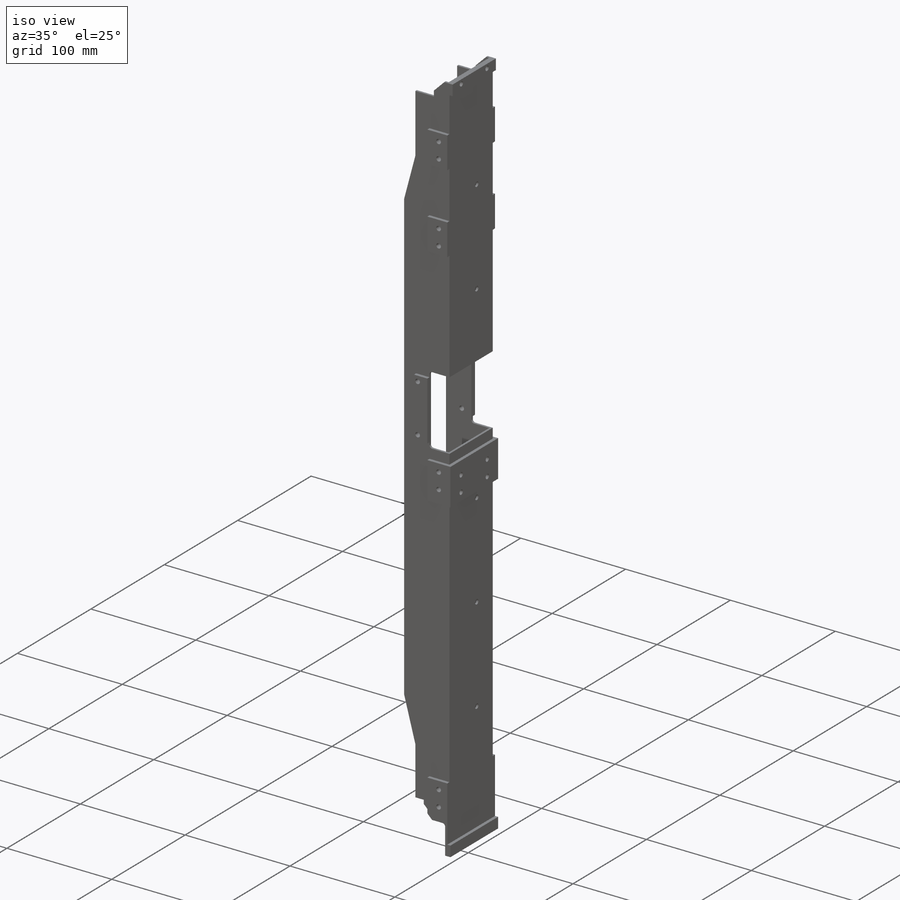
[diagram: iso view]
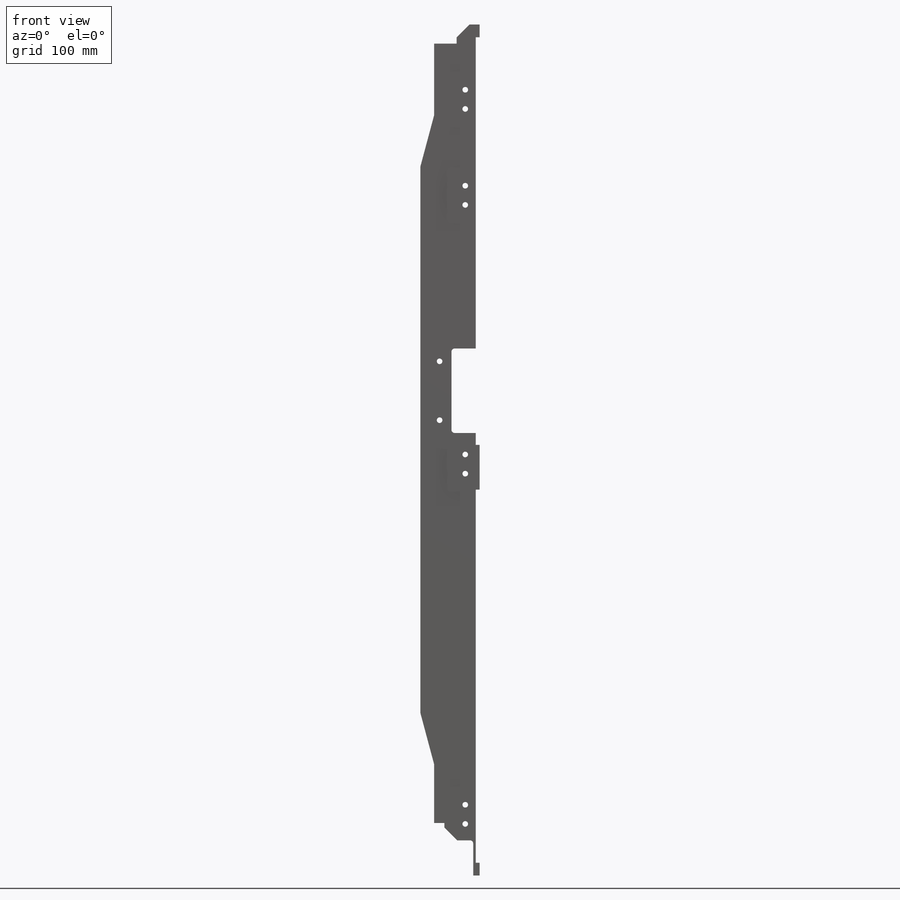
[diagram: front view]
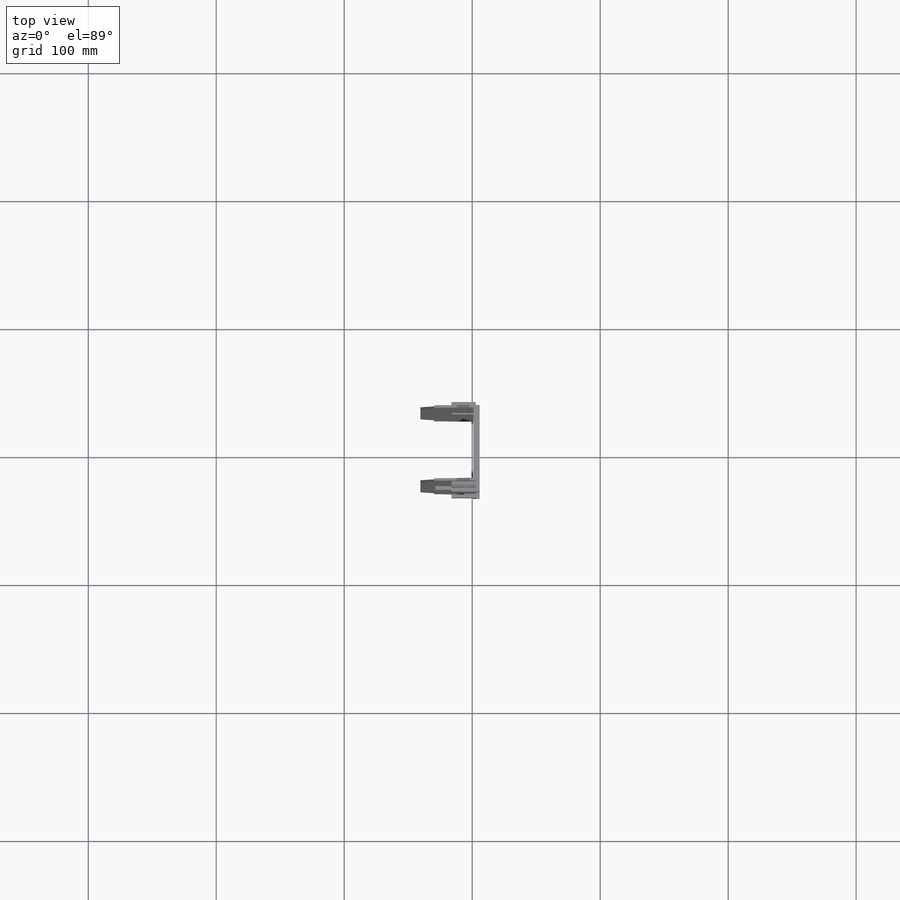
[diagram: top view]
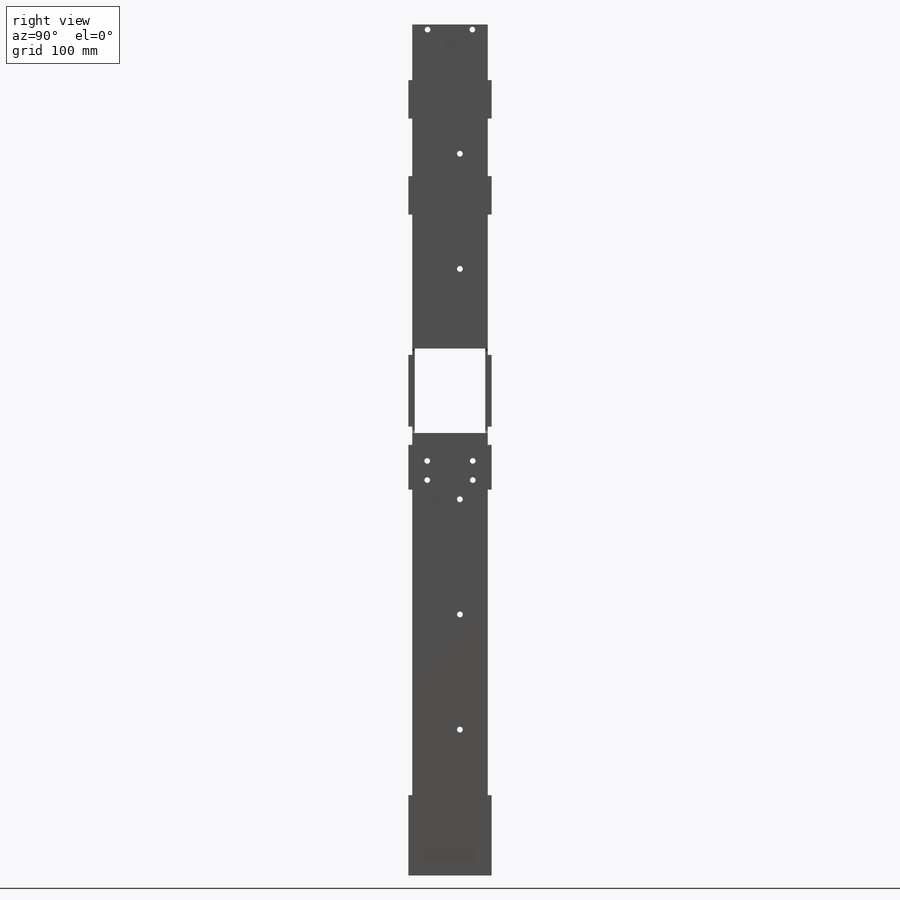
[diagram: right view]
SOLIDWORKS PART (.sldprt)
format: sldprt  version: not decoded by parser v0  size: 1,004,032 bytes
history: native  units: mm
features: thread x24, sketch x22, cut_extrude x8, hole x6, plane x5, chamfer x2, material x1, extrude x1, pattern_linear x1, fillet x1 + 1 further entry (+10 scaffold rows collapsed)
feature tree (82):
  scaffold x10  (default folders/planes/origin — collapsed)
  material  "6061-T6 Al"
  "Origin"  ID=91907860
  sketch  "MASS SEPARATION"  dims[c1.D2=170.0mm c1.D1=602.0mm c1.D3=95.0mm c1.D4=11.4mm c1.D5=5.0mm c1.D6=11.4mm c1.D7=5.0mm c1.D8=147.8mm c1.D9=162.0mm c1.D10=53.8mm c1.D11=25.0mm c1.D12=234.7mm c1.D13=~326.458267mm c1.D14=624.8mm c2.D4=12.5mm c2.D6=301.0mm c2.D11=301.0mm c2.D14=~8.229133mm c2.D15=~8.229133mm]
  sketch  "Sketch2"  dims[c1.D1=175.0mm c1.D2=1.0mm c1.D3=140.0mm c1.D4=120.0mm c1.D5=100.0mm c1.D6=~334.712064mm c2.D6=90.0deg c3.D6=100.0mm c3.D3=46.8mm c3.D4=5.5mm c4.D6=~60.446602mm c4.D2=7.0mm c4.D1=47.5mm c4.D3=46.25mm c4.D5=47.5mm c5.D6=47.5mm c5.D7=~376.205025mm c6.D7=15.0deg c6.D8=47.5mm c6.D9=~71.617552mm c7.D9=15.0deg c7.D10=697.0mm]
  extrude  "Extrude1"  Depth=65mm
  sketch  "Sketch3"  dims[D1=5.0mm D2=5.0mm D3=5.0mm D4=60.0mm]
  cut_extrude  "Cut-Extrude1"  [1 undecoded]
  plane  "Plane1"  Offset=301mm
  sketch  "Sketch4"  dims[c1.D1=5.0mm c1.D2=7.2mm c1.D3=5.0mm c1.D4=60.0mm c1.D5=66.0mm c2.D4=4.0mm c2.D6=35.6mm c3.D4=22.0mm c3.D6=9.0mm]
  cut_extrude  "Cut-Extrude2"  Depth=70mm
  hole  "#8 Clearance Hole1"  Diameter=4.4958mm Depth=46.25mm
  sketch  "3DSketch1"  dims[c1.D1=125.0mm c1.D2=125.0mm c2.D1=125.0mm c2.D2=24.772mm]
  sketch  "Sketch32"  dims[hole-wizard template sketch: 60 standard entries collapsed; hole parameters kept: c18.Thru Hole Depth=46.25mm]
  pattern_linear  "LPattern1"  Count1=7 Count2=1 Spacing1=90mm Spacing2=10mm
  hole  "Tapped Hole for #8-32 Helicoil2"  [1 undecoded]
  sketch  "3DSketch2"  dims[c1.D1=75.0mm c1.D2=75.0mm c2.D1=15.0mm c2.D2=150.0mm c2.D3=11.175mm c2.D8=11.175mm c2.D4=15.0mm c2.D5=15.0mm c2.D6=360.0mm c2.D7=633.7mm c3.D3=11.2mm]
  thread  "Hole Thread3"  Diameter=5mm  [1 undecoded]
  thread  "Hole Thread4"  Diameter=5mm  [1 undecoded]
  thread  "Hole Thread5"  Diameter=5mm  [1 undecoded]
  thread  "Hole Thread6"  Diameter=5mm  [1 undecoded]
  thread  "Hole Thread7"  Diameter=5mm  [1 undecoded]
  thread  "Hole Thread8"  Diameter=5mm  [1 undecoded]
  thread  "Hole Thread9"  Diameter=5mm  [1 undecoded]
  thread  "Hole Thread10"  Diameter=5mm  [1 undecoded]
  sketch  "Sketch33"  dims[hole-wizard template sketch: 46 standard entries collapsed; hole parameters kept: c15.Tap Drill Dia.=4.3942mm c15.Tap Drill Depth=11.1252mm c15.D3=~14.816244mm c15.Drill Angle=118.0deg]
  hole  "Tapped Hole for #8-32 Helicoil6"  Diameter=4.3942mm Depth=11.1252mm
  sketch  "Sketch45"
  sketch  "Sketch44"  dims[hole-wizard template sketch: 46 standard entries collapsed; hole parameters kept: c15.Tap Drill Dia.=4.3942mm c15.Tap Drill Depth=11.1252mm c15.D3=~14.816244mm c15.Drill Angle=118.0deg]
  thread  "Hole Thread23"  Diameter=5mm  [1 undecoded]
  thread  "Hole Thread24"  Diameter=5mm  [1 undecoded]
  thread  "Hole Thread25"  Diameter=5mm  [1 undecoded]
  thread  "Hole Thread26"  Diameter=5mm  [1 undecoded]
  thread  "Hole Thread27"  Diameter=5mm  [1 undecoded]
  thread  "Hole Thread28"  Diameter=5mm  [1 undecoded]
  thread  "Hole Thread29"  Diameter=5mm  [1 undecoded]
  thread  "Hole Thread30"  Diameter=5mm  [1 undecoded]
  hole  "Tapped Hole for #8-32 Helicoil3"  Diameter=4.3942mm Depth=46.25mm
  sketch  "Sketch24"  dims[c1.D1=10.0mm c1.D2=40.0mm c1.D3=35.6mm c2.D1=15.0mm]
  sketch  "Sketch25"  dims[hole-wizard template sketch: 60 standard entries collapsed; hole parameters kept: c18.Thru Tap Drill Depth=46.25mm]
  thread  "Hole Thread15"  Diameter=5mm  [1 undecoded]
  thread  "Hole Thread16"  Diameter=5mm  [1 undecoded]
  thread  "Hole Thread21"  Diameter=5mm  [1 undecoded]
  thread  "Hole Thread22"  Diameter=5mm  [1 undecoded]
  plane  "Plane2"  Offset=0mm
  hole  "Tapped Hole for #8-32 Helicoil4"  Diameter=4.3942mm Depth=65mm
  sketch  "3DSketch3"  dims[D1=46.0mm D2=15.0mm]
  sketch  "Sketch34"  dims[hole-wizard template sketch: 60 standard entries collapsed; hole parameters kept: c18.Thru Tap Drill Depth=65.0mm]
  thread  "Hole Thread17"  Diameter=5.1mm  [1 undecoded]
  thread  "Hole Thread18"  Diameter=5.1mm  [1 undecoded]
  sketch  "Sketch35"  dims[D1=24.0mm D2=2.0mm D3=2.0mm D4=8.0mm]
  cut_extrude  "Extrude18"  [1 undecoded]
  hole  "Tapped Hole for #8-32 Helicoil5"  Diameter=4.3942mm Depth=46.25mm
  sketch  "3DSketch4"  dims[D1=4.0mm D2=35.0mm D3=15.0mm]
  sketch  "Sketch36"  dims[hole-wizard template sketch: 60 standard entries collapsed; hole parameters kept: c18.Thru Tap Drill Depth=46.25mm]
  thread  "Hole Thread19"  Diameter=3.25mm  [1 undecoded]
  thread  "Hole Thread20"  Diameter=3.25mm  [1 undecoded]
  plane  "Plane3"  Offset=0mm
  sketch  "Sketch37"  dims[c1.D1=5.0mm c1.D2=35.0mm c1.D3=13.0mm c2.D2=27.5mm c2.D3=41.0mm c2.D4=22.5mm]
  cut_extrude  "Cut-Extrude4"  [1 undecoded]
  chamfer  "Chamfer1"  Distance=10mm Angle=45deg
  plane  "Plane4"  Offset=0mm
  sketch  "Sketch38"  dims[D1=17.9mm D2=15.0mm]
  cut_extrude  "Cut-Extrude5"  [1 undecoded]
  chamfer  "Chamfer2"  Distance=10mm Angle=45deg
  plane  "Plane5"  Offset=0mm
  sketch  "Sketch40"  dims[c1.D5=4.3942mm c1.D7=2.5mm c1.D9=4.3942mm c1.D10=4.3942mm c1.D11=2.5mm c1.D2=2.5mm c1.D15=4.3942mm c1.D16=4.3942mm c1.D19=4.3942mm c1.D1=2.0mm c2.D2=60.0mm c2.D3=20.0mm c2.D4=30.0mm c2.D5=10.8mm c2.D6=7.5mm c2.D8=10.0mm c2.D9=3.5mm c2.D10=5.0mm c2.D12=5.0mm c2.D13=35.0mm c2.D14=19.0mm c2.D15=12.5mm c2.D16=10.0mm c2.D17=10.0mm c3.D16=7.5mm c3.D17=30.0mm c3.D18=30.0mm c3.D19=7.5mm c3.D20=10.8mm c3.D3=12.75mm c3.D7=56.0mm c3.D8=2.0mm c3.D4=27.4mm]
  cut_extrude  "Cut-Extrude13"  Depth=3mm
  cut_extrude  "Cut-Extrude14"  [1 undecoded]
  sketch  "Sketch40<3>"  dims[D1=3.0mm D19=32.5mm]
  sketch  "Sketch42"  dims[c1.D2=2.5mm c1.D4=4.3942mm c1.D1=10.0mm c1.D3=21.0mm c2.D4=8.5mm c2.D2=10.0mm c2.D3=65.0mm]
  cut_extrude  "Cut-Extrude15"  Depth=3mm
  fillet  "Fillet2"  Radius=2.5mm
decode coverage: 58 of 65 modeling features carry decoded parameters; 1 rows unclassified (native names shown)
note: ~ marks probable driven/reference dimensions
note: 30 parameter values undecoded
summary: no parameter record found for 6 features; Diameter pulled from absorbed wizard sketch
note: suppression state not decoded; provenance and decode notes live in map.json
